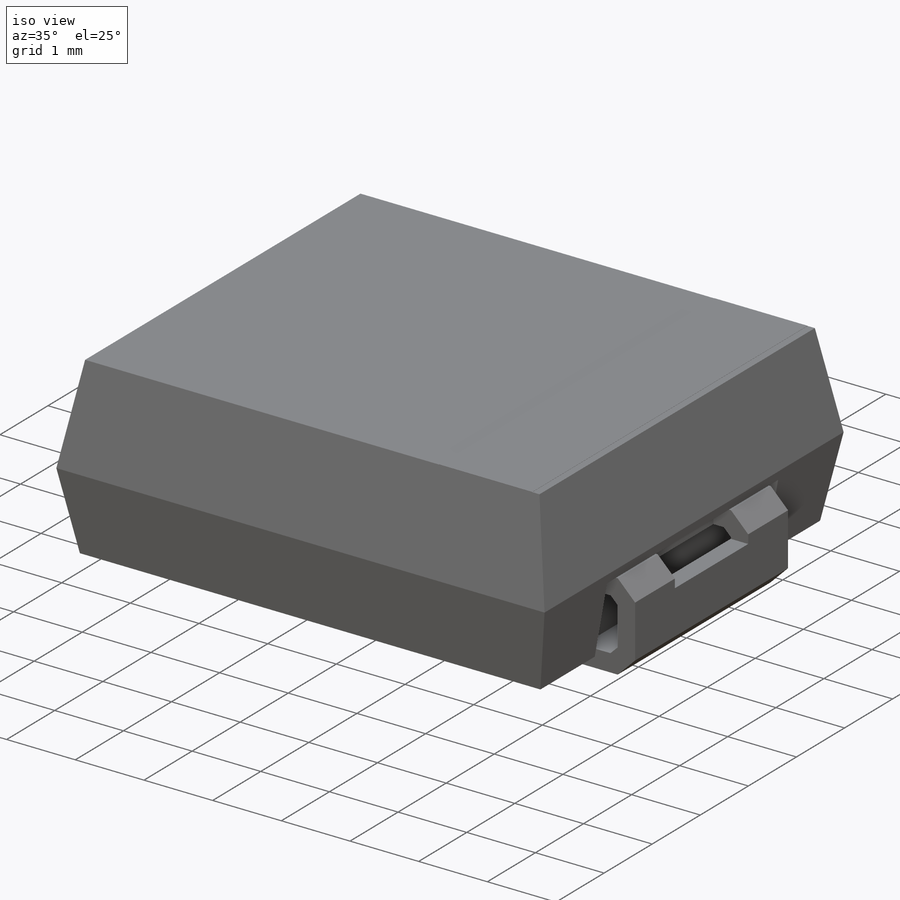
[diagram: iso view]
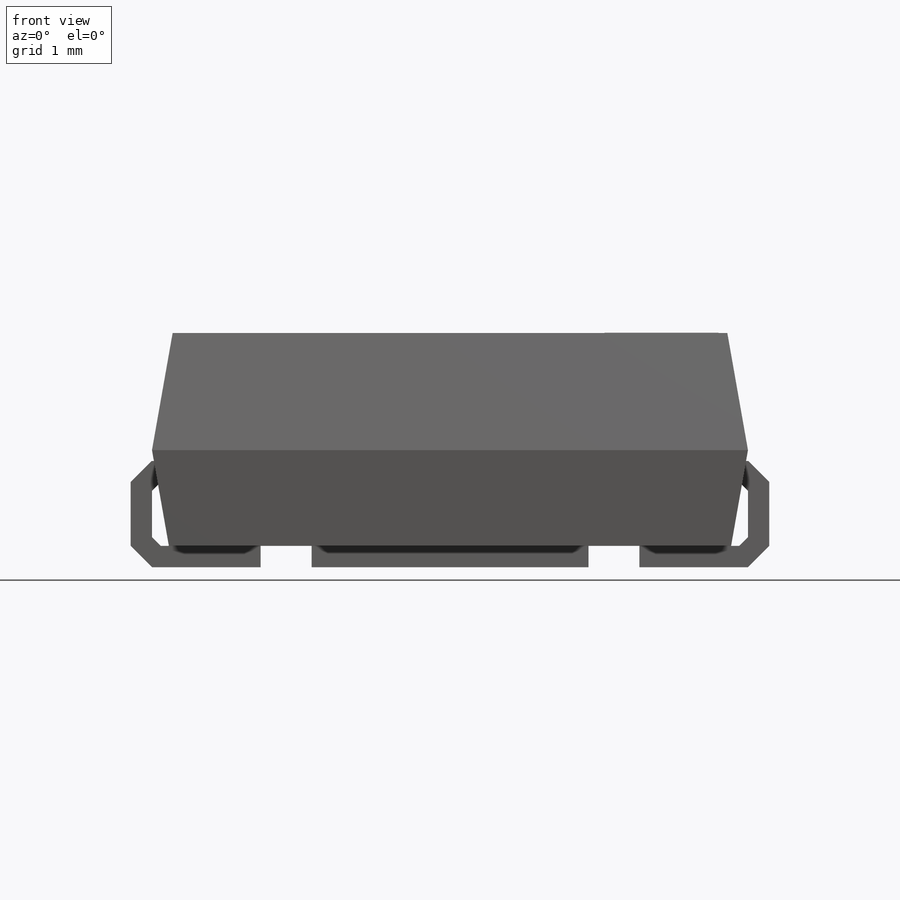
[diagram: front view]
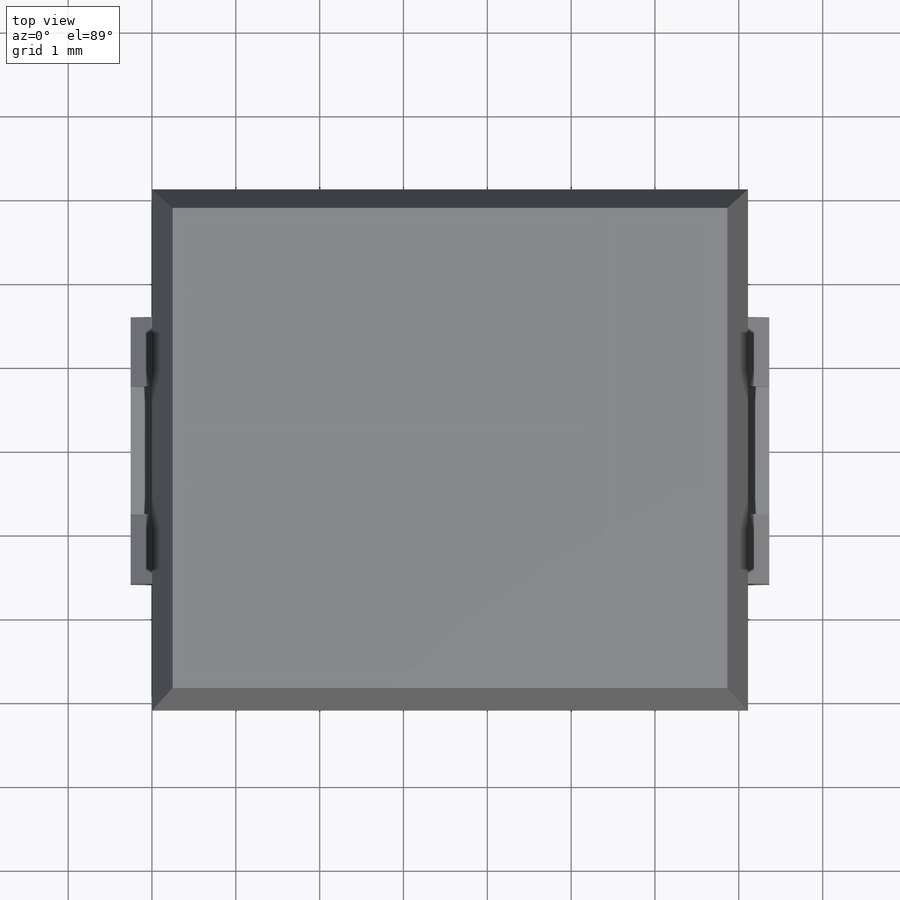
[diagram: top view]
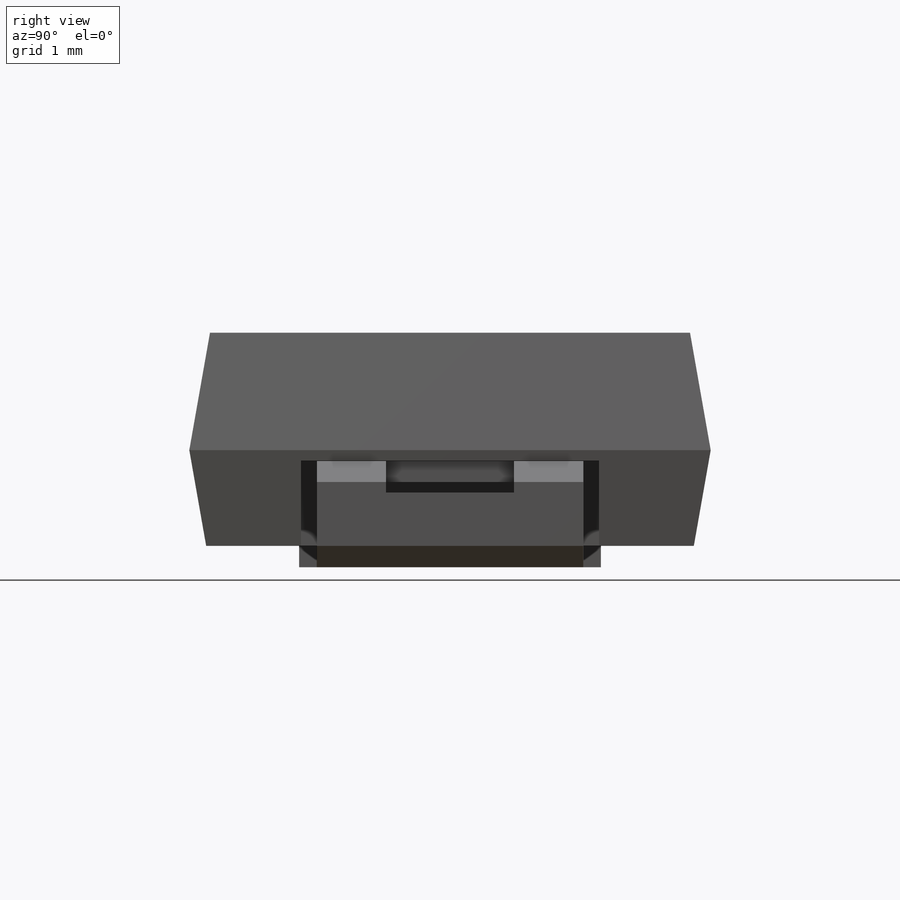
[diagram: right view]
SOLIDWORKS PART (.sldprt)
format: sldprt  version: not decoded by parser v0  size: 293,888 bytes
history: native  units: mm
features: sketch x8, cut_extrude x4, extrude x2, chamfer x2, material x1, plane x1, mirror x1 (+12 scaffold rows collapsed)
feature tree (31):
  scaffold x12  (default folders/planes/origin — collapsed)
  material  "Material <not specified>"
  sketch  "Sketch2"  dims[D1=2.794mm D2=~6.219952mm]
  extrude  "Base-Extrude"  Depth=7.10946mm
  chamfer  "Chamfer1"  Distance=1.397mm Angle=10deg
  sketch  "Sketch3"  dims[D1=1.27mm D2=1.778mm D3=3.556mm]
  cut_extrude  "Cut-Extrude1"  Depth=0.508mm
  sketch  "Sketch4"  dims[D1=3.556mm D2=1.778mm D3=1.27mm]
  cut_extrude  "Cut-Extrude2"  Depth=0.508mm
  sketch  "Sketch5"  dims[D1=~3.600196mm D2=~1.800098mm D3=1.905mm D4=3.302mm]
  cut_extrude  "Cut-Extrude3"  Depth=0.254mm
  chamfer  "Chamfer2"  Distance=1.397mm Angle=10deg
  sketch  "Sketch6"  dims[c1.D1=1.2954mm c1.D2=~0.499322mm c2.D2=~217.464286deg c3.D2=~0.499322mm c4.D2=135.0deg c4.D3=0.254mm c4.D4=0.762mm c4.D5=0.762mm c5.D5=135.0deg c5.D6=0.3556mm c5.D1=~3.179826mm c6.D5=0.254mm c6.D6=1.0mm c6.D7=5.0mm]
  sketch  "Sketch7"  dims[D1=0.381mm D2=0.762mm D3=1.524mm]
  cut_extrude  "Cut-Extrude4"  Depth=0.508mm
  plane  "Plane6"  Offset=3.554984mm
  mirror  "Mirror1"
  sketch  "Sketch8"  dims[c1.D1=0.9906mm c1.D2=0.762mm c2.D1=~5.40004mm c2.D2=~1.35763mm]
  extrude  "Boss-Extrude2"  Depth=0.00254mm
  sketch  "Component_Outline"
decode coverage: 15 of 17 modeling features carry decoded parameters
note: ~ marks probable driven/reference dimensions
note: suppression state not decoded; provenance and decode notes live in map.json
